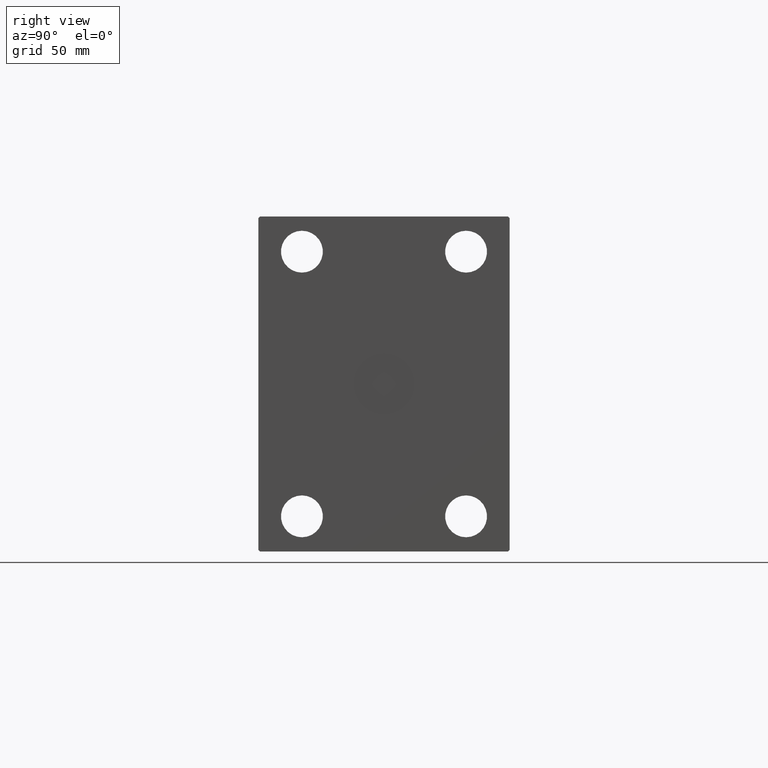
[diagram: clean part render]
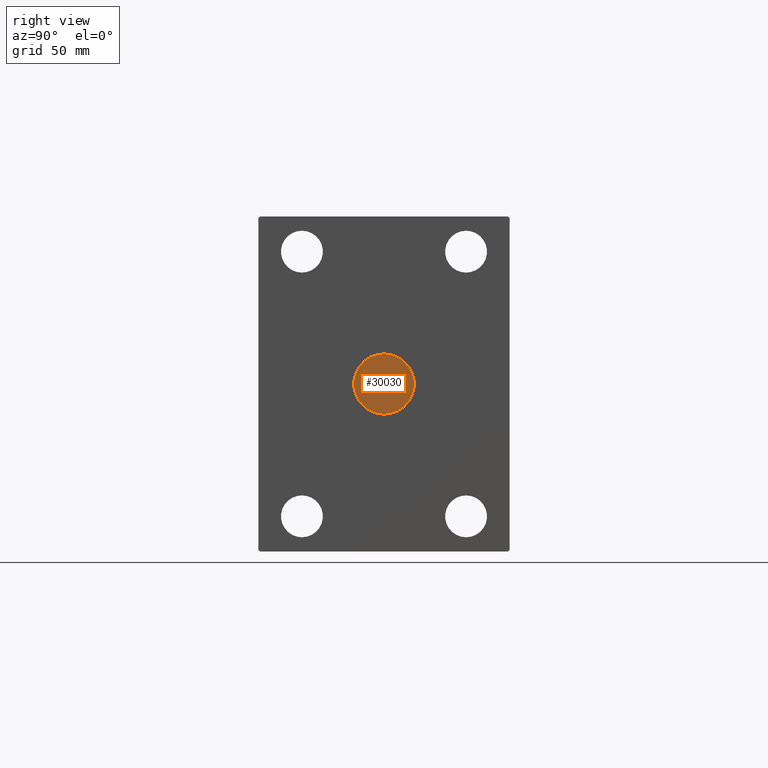
[diagram: same view with one face highlighted and labeled with its STEP entity id]
A machine part, right view. The second image highlights one B-rep face of the part: STEP entity #30030.
In plain terms, the highlighted planar face has unit normal (1, 0, 0).
Its self-contained STEP definition (entity closure, byte-faithful):
#30 = FACE_OUTER_BOUND ( 'NONE', #28651, .T. ) ;
#1004 = CARTESIAN_POINT ( 'NONE',  ( 357.8000000000000114, 0.000000000000000000, 0.000000000000000000 ) ) ;
#2811 = AXIS2_PLACEMENT_3D ( 'NONE', #27450, #21185, #8097 ) ;
#3243 = CARTESIAN_POINT ( 'NONE',  ( 357.8000000000000114, 0.000000000000000000, 0.000000000000000000 ) ) ;
#8097 = DIRECTION ( 'NONE',  ( 0.000000000000000000, 0.000000000000000000, -1.000000000000000000 ) ) ;
#9692 = DIRECTION ( 'NONE',  ( 1.000000000000000000, 0.000000000000000000, 0.000000000000000000 ) ) ;
#10459 = DIRECTION ( 'NONE',  ( 1.000000000000000000, 0.000000000000000000, 0.000000000000000000 ) ) ;
#14186 = ORIENTED_EDGE ( 'NONE', *, *, #34802, .T. ) ;
#14563 = CARTESIAN_POINT ( 'NONE',  ( 357.8000000000000114, 2.204364238465235428E-15, 18.00000000000000000 ) ) ;
#16040 = CIRCLE ( 'NONE', #37311, 18.00000000000000000 ) ;
#18044 = VERTEX_POINT ( 'NONE', #14563 ) ;
#21185 = DIRECTION ( 'NONE',  ( 1.000000000000000000, 0.000000000000000000, 0.000000000000000000 ) ) ;
#21324 = CIRCLE ( 'NONE', #2811, 18.00000000000000000 ) ;
#21897 = EDGE_CURVE ( 'NONE', #18044, #22700, #21324, .T. ) ;
#22700 = VERTEX_POINT ( 'NONE', #24655 ) ;
#24168 = AXIS2_PLACEMENT_3D ( 'NONE', #3243, #9692, #38460 ) ;
#24655 = CARTESIAN_POINT ( 'NONE',  ( 357.8000000000000114, 0.000000000000000000, -18.00000000000000000 ) ) ;
#27450 = CARTESIAN_POINT ( 'NONE',  ( 357.8000000000000114, 0.000000000000000000, 0.000000000000000000 ) ) ;
#28651 = EDGE_LOOP ( 'NONE', ( #14186, #37682 ) ) ;
#30030 = ADVANCED_FACE ( 'NONE', ( #30 ), #39105, .T. ) ;
#34285 = DIRECTION ( 'NONE',  ( 0.000000000000000000, 0.000000000000000000, -1.000000000000000000 ) ) ;
#34802 = EDGE_CURVE ( 'NONE', #22700, #18044, #16040, .T. ) ;
#37311 = AXIS2_PLACEMENT_3D ( 'NONE', #1004, #10459, #34285 ) ;
#37682 = ORIENTED_EDGE ( 'NONE', *, *, #21897, .T. ) ;
#38460 = DIRECTION ( 'NONE',  ( 0.000000000000000000, 0.000000000000000000, -1.000000000000000000 ) ) ;
#39105 = PLANE ( 'NONE',  #24168 ) ;